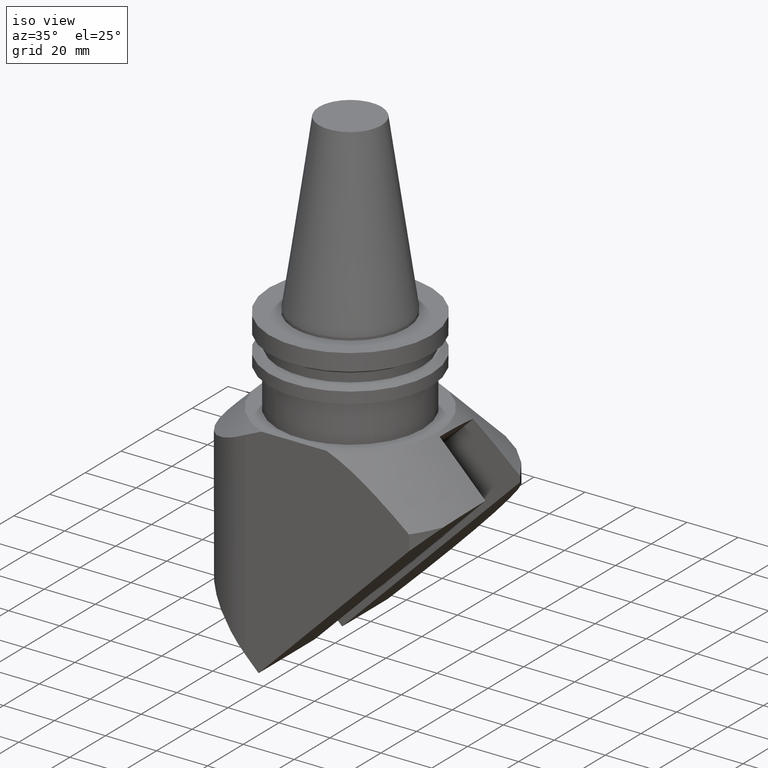
[diagram: clean part render]
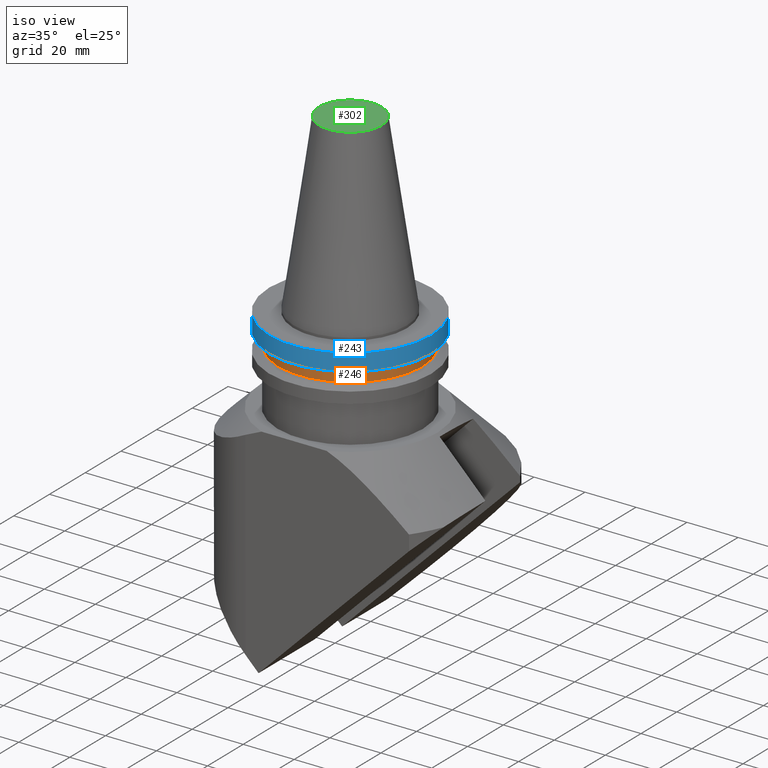
[diagram: same view with three faces highlighted in distinct colors, each labeled with its STEP entity id]
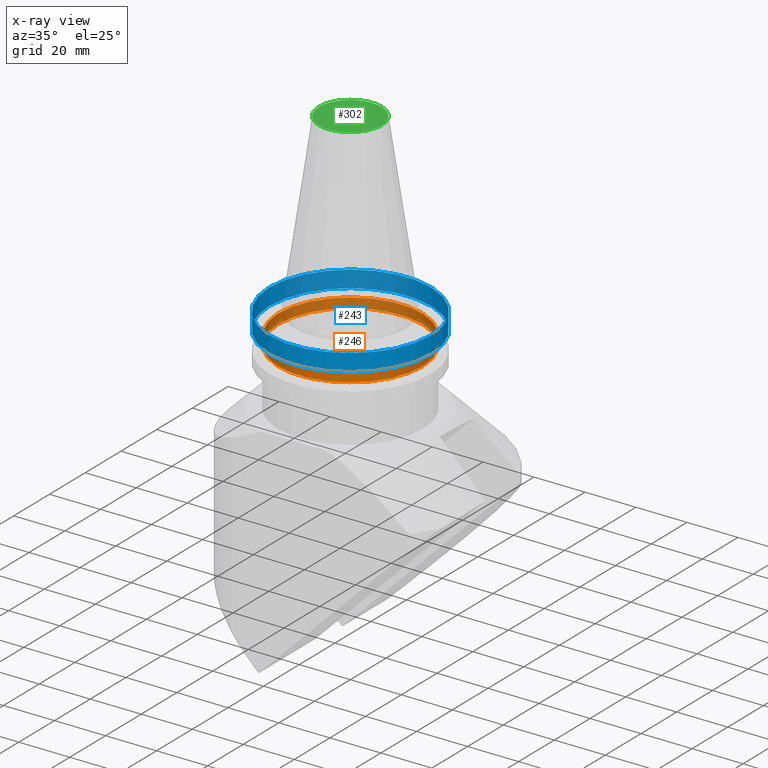
[diagram: x-ray of the same camera — body ghosted, the three highlighted faces saturated]
A machine part, iso view with three faces highlighted in distinct colors.
The next image is the same camera in x-ray (body ghosted, the three faces saturated) — at least one of them is partly hidden behind the body in this view.
Their STEP definitions:

[orange] entity #246 — the highlighted cylindrical surface (bore or boss wall) has radius 28.18 mm, axis along (0, -0, -1).
#186=EDGE_CURVE('Unnamed[1]',#443,#443,#444,.T.);
#246=ADVANCED_FACE('Unnamed[1]',(#522,#523),#524,.T.);
#265=EDGE_CURVE('Unnamed[1]',#550,#550,#551,.T.);
#443=VERTEX_POINT('',#827);
#444=CIRCLE('',#828,28.18);
#522=FACE_BOUND('',#952,.T.);
#523=FACE_BOUND('',#953,.T.);
#524=CYLINDRICAL_SURFACE('',#954,28.18);
#550=VERTEX_POINT('',#990);
#551=CIRCLE('',#991,28.18);
#827=CARTESIAN_POINT('',(-28.1799999999997,4.61324449238801E-015,-9.20000000000012));
#828=AXIS2_PLACEMENT_3D('',#1212,#1213,#1214);
#952=EDGE_LOOP('',(#1316));
#953=EDGE_LOOP('',(#1317));
#954=AXIS2_PLACEMENT_3D('',#1318,#1319,#1320);
#990=CARTESIAN_POINT('',(-28.1799999999997,4.37811230695172E-015,-13.0400000000001));
#991=AXIS2_PLACEMENT_3D('',#1347,#1348,#1349);
#1212=CARTESIAN_POINT('',(3.20018916776528E-013,-5.63337527607842E-016,-9.2));
#1213=DIRECTION('',(4.23985966663277E-015,-6.12323399573684E-017,-1.0));
#1214=DIRECTION('',(-1.0,1.83697019872103E-016,-4.23985966663277E-015));
#1316=ORIENTED_EDGE('',*,*,#265,.F.);
#1317=ORIENTED_EDGE('',*,*,#186,.T.);
#1318=CARTESIAN_POINT('',(3.28159447336463E-013,-6.80903620325989E-016,-11.12));
#1319=DIRECTION('',(4.23985966663277E-015,-6.12323399573684E-017,-1.0));
#1320=DIRECTION('',(-1.0,1.83697019872103E-016,-4.23985966663277E-015));
#1347=CARTESIAN_POINT('',(3.36299977896397E-013,-7.98469713044136E-016,-13.04));
#1348=DIRECTION('',(4.23985966663277E-015,-6.12323399573684E-017,-1.0));
#1349=DIRECTION('',(-1.0,1.83697019872103E-016,-4.23985966663277E-015));

[blue] entity #243 — the highlighted cylindrical surface (bore or boss wall) has radius 31.75 mm, axis along (0, -0, -1).
#115=EDGE_CURVE('Unnamed[1]',#334,#334,#335,.T.);
#243=ADVANCED_FACE('Unnamed[1]',(#517,#518),#519,.T.);
#287=EDGE_CURVE('Unnamed[1]',#577,#577,#578,.T.);
#334=VERTEX_POINT('',#626);
#335=CIRCLE('',#627,31.75);
#517=FACE_BOUND('',#946,.T.);
#518=FACE_BOUND('',#947,.T.);
#519=CYLINDRICAL_SURFACE('',#948,31.75);
#577=VERTEX_POINT('',#1033);
#578=CIRCLE('',#1034,31.75);
#626=CARTESIAN_POINT('',(-31.7499999999997,5.77114804098184E-015,-1.00000000000013));
#627=AXIS2_PLACEMENT_3D('',#1103,#1104,#1105);
#946=EDGE_LOOP('',(#1310));
#947=EDGE_LOOP('',(#1311));
#948=AXIS2_PLACEMENT_3D('',#1312,#1313,#1314);
#1033=CARTESIAN_POINT('',(-31.7499999999997,5.36696357664059E-015,-7.60083323000014));
#1034=AXIS2_PLACEMENT_3D('',#1372,#1373,#1374);
#1103=CARTESIAN_POINT('',(2.85252067510139E-013,-6.12323399574201E-017,-1.0));
#1104=DIRECTION('',(4.23985966663277E-015,-6.12323399573684E-017,-1.0));
#1105=DIRECTION('',(-1.0,1.83697019872103E-016,-4.23985966663277E-015));
#1310=ORIENTED_EDGE('',*,*,#287,.F.);
#1311=ORIENTED_EDGE('',*,*,#115,.T.);
#1312=CARTESIAN_POINT('',(2.99245370799162E-013,-2.63324572128048E-016,-4.300416615));
#1313=DIRECTION('',(4.23985966663277E-015,-6.12323399573684E-017,-1.0));
#1314=DIRECTION('',(-1.0,1.83697019872103E-016,-4.23985966663277E-015));
#1372=CARTESIAN_POINT('',(3.13238674088185E-013,-4.65416804298675E-016,-7.60083323000001));
#1373=DIRECTION('',(4.23985966663277E-015,-6.12323399573684E-017,-1.0));
#1374=DIRECTION('',(-1.0,1.83697019872103E-016,-4.23985966663277E-015));

[green] entity #302 — the highlighted planar face has unit normal (-0, 0, 1).
#153=EDGE_CURVE('Unnamed[1]',#397,#397,#398,.T.);
#302=ADVANCED_FACE('Unnamed[1]',(#597),#598,.T.);
#397=VERTEX_POINT('',#759);
#398=CIRCLE('',#760,12.2718750014769);
#597=FACE_OUTER_BOUND('',#1076,.T.);
#598=PLANE('',#1077);
#759=CARTESIAN_POINT('',(-12.2718750014769,6.4334140681046E-015,68.2499999999999));
#760=AXIS2_PLACEMENT_3D('',#1165,#1166,#1167);
#1076=EDGE_LOOP('',(#1395));
#1077=AXIS2_PLACEMENT_3D('',#1396,#1397,#1398);
#1165=CARTESIAN_POINT('',(-8.35821440418068E-015,4.17910720209035E-015,68.25));
#1166=DIRECTION('',(4.23985966663278E-015,-6.12323399573684E-017,-1.0));
#1167=DIRECTION('',(-1.0,1.83697019872103E-016,-4.23985966663278E-015));
#1395=ORIENTED_EDGE('',*,*,#153,.F.);
#1396=CARTESIAN_POINT('',(-6.13593750073844,5.30626063509747E-015,68.25));
#1397=DIRECTION('',(-4.75447232780613E-015,6.12323399573685E-017,1.0));
#1398=DIRECTION('',(1.0,-1.83697019872103E-016,4.75447232780613E-015));